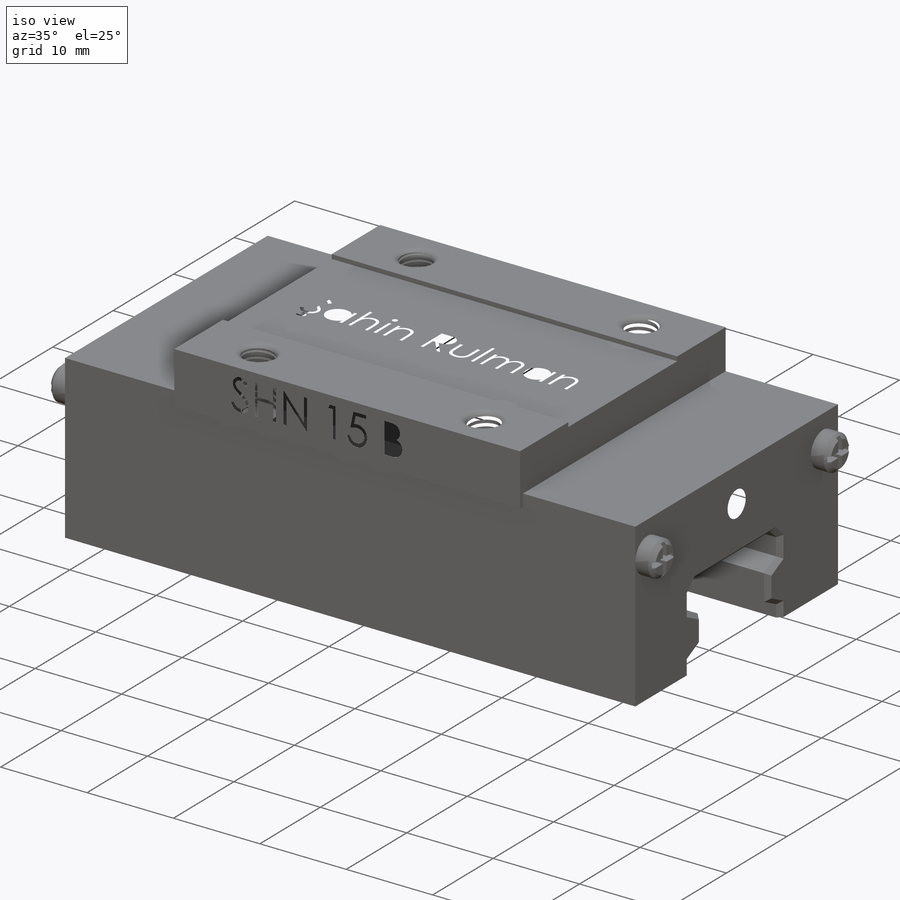
[diagram: iso view]
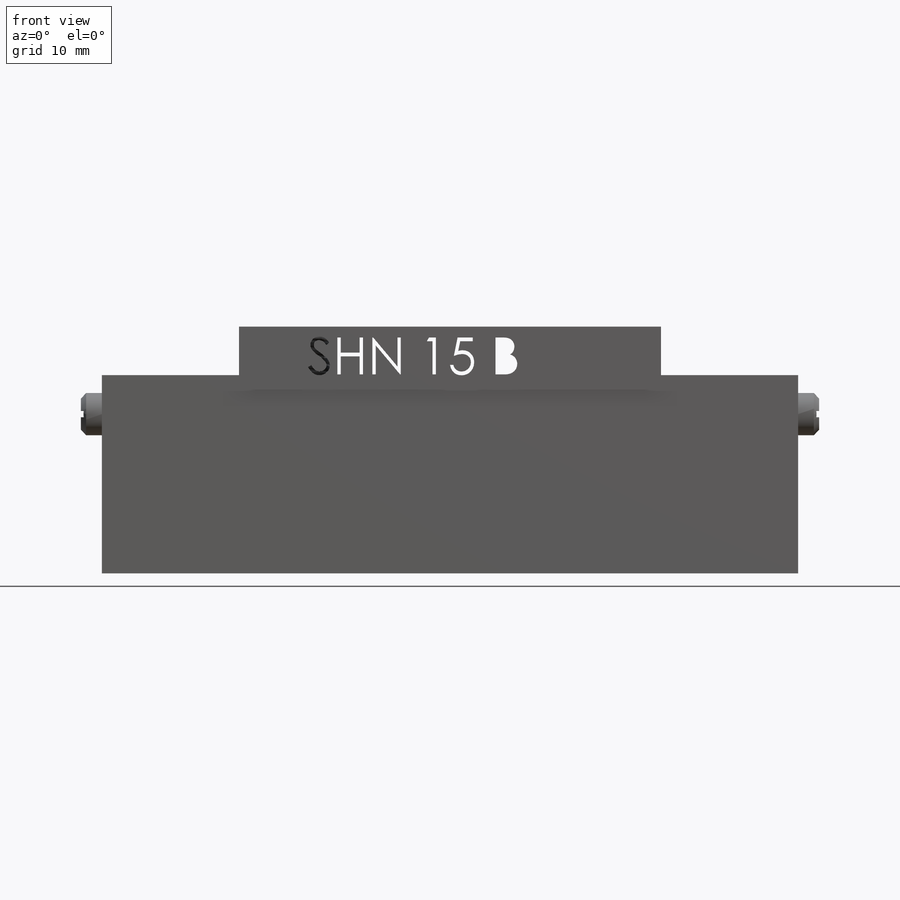
[diagram: front view]
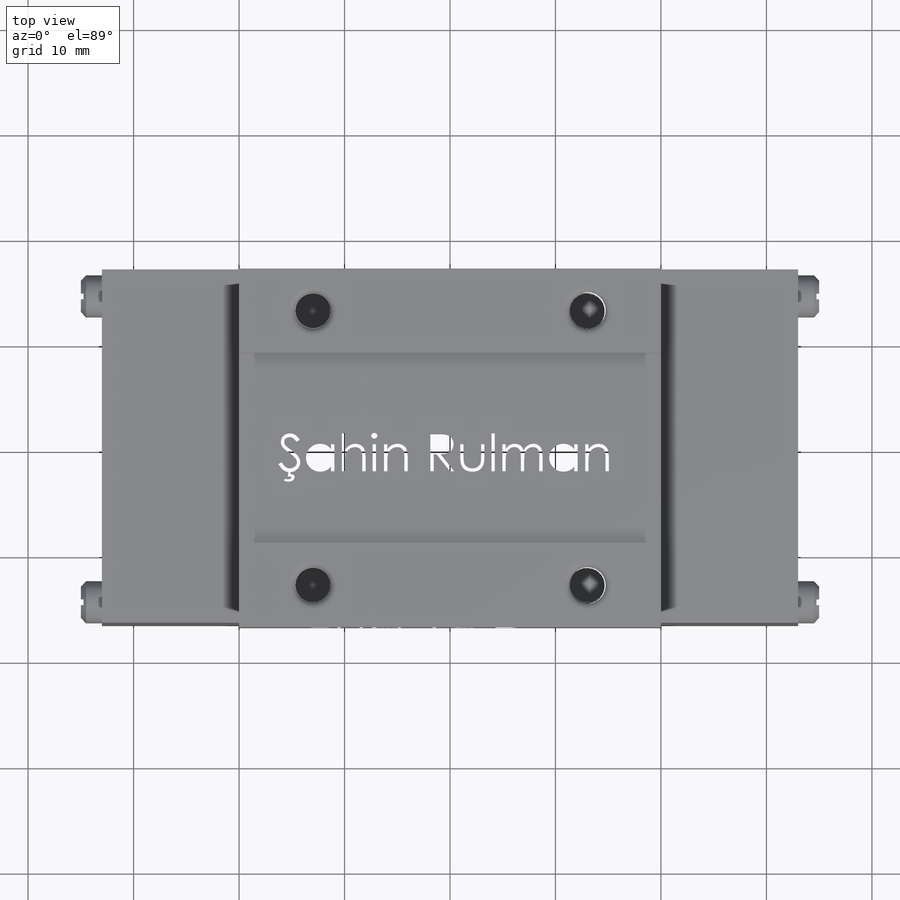
[diagram: top view]
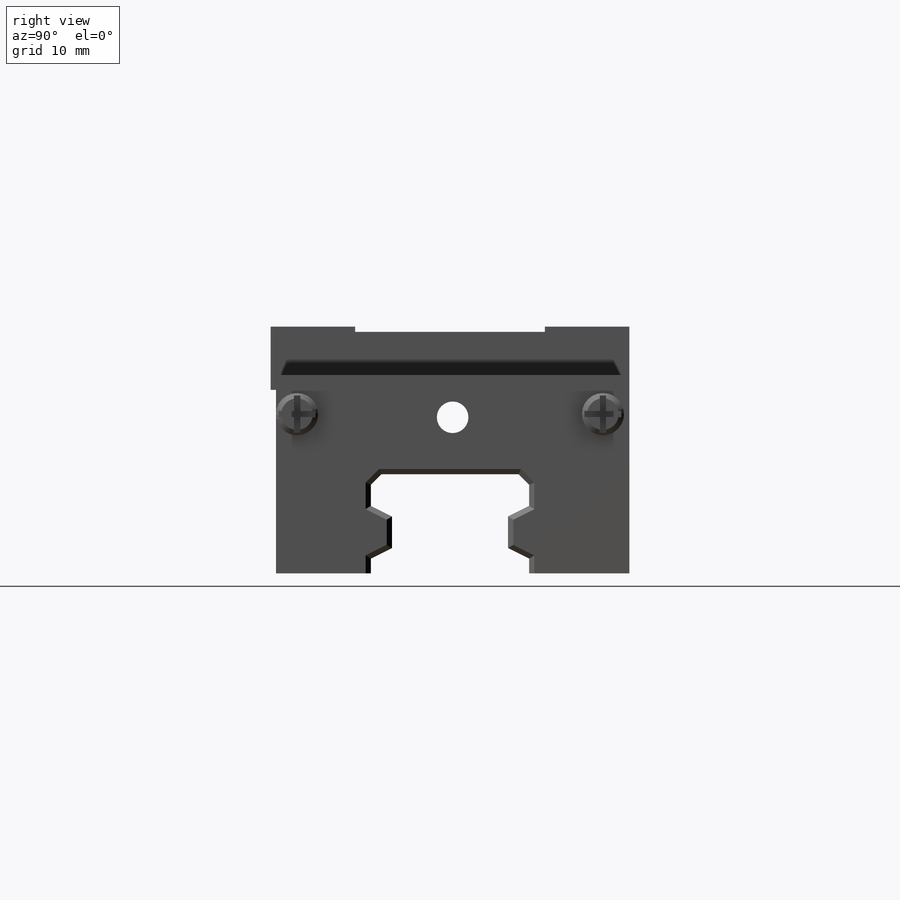
[diagram: right view]
SOLIDWORKS PART (.sldprt)
format: sldprt  version: not decoded by parser v0  size: 3,023,360 bytes
history: native  units: mm
features: sketch x11, mirror x7, cut_extrude x6, extrude x3, chamfer x2, material x1, fillet x1, helix x1, plane x1, sweep x1 (+11 scaffold rows collapsed)
feature tree (45):
  scaffold x11  (default folders/planes/origin — collapsed)
  material  "Material <not specified>"
  sketch  "Sketch1"  dims[D1=34.0mm D2=17.0mm D3=23.4mm D4=6.0mm D5=0.5mm]
  extrude  "Boss-Extrude1"  Depth=40mm
  sketch  "Sketch2"  dims[D1=4.6mm]
  extrude  "Boss-Extrude2"  Depth=13mm
  sketch  "Sketch3"  dims[D1=8.0mm D2=8.0mm D3=8.0mm D4=8.0mm]
  cut_extrude  "Cut-Extrude1"  [1 undecoded]
  mirror  "Mirror1"
  sketch  "Sketch9"  dims[D1=4.0mm D6=3.5mm D7=1.75mm D8=3.5mm D9=1.75mm D2=0.3mm D3=0.3mm D4=0.3mm D5=0.3mm]
  extrude  "Boss-Extrude6"  Depth=2mm
  chamfer  "Chamfer2"  Distance=0.5mm Angle=45deg
  mirror  "Mirror7"
  mirror  "Mirror8"
  mirror  "Mirror9"
  sketch  "Sketch10"  dims[D1=4.6mm D2=16.0mm D3=7.5mm D5=1.0mm D6=1.0mm D7=2.0mm D8=1.0mm D9=3.0mm D10=2.0mm D11=6.0mm D12=2.0mm D4=14.0mm]
  cut_extrude  "Cut-Extrude3"  [1 undecoded]
  chamfer  "Chamfer3"  Distance=0.5mm Angle=45deg
  sketch  "Sketch11"  dims[D3=3.3mm D1=13.0mm D2=13.0mm]
  cut_extrude  "Cut-Extrude4"  Depth=6.4mm
  fillet  "Fillet1"  Radius=0.7mm
  sketch  "Sketch12"
  helix  "Helix/Spiral1"  Pitch=6.4mm
  plane  "Plane1"
  sketch  "Sketch13"  dims[D1=0.35mm]
  sweep  "Cut-Sweep1"
  mirror  "Mirror10"
  mirror  "Mirror11"
  sketch  "Sketch14"
  cut_extrude  "Cut-Extrude5"  Depth=2mm
  sketch  "Sketch15"
  cut_extrude  "Cut-Extrude6"  Depth=2mm
  sketch  "Sketch16"  dims[D1=3.0mm D2=4.0mm]
  cut_extrude  "Cut-Extrude7"  [1 undecoded]
  mirror  "Mirror12"
decode coverage: 18 of 32 modeling features carry decoded parameters
note: 3 parameter values undecoded
summary: no parameter record found for 3 features
note: suppression state not decoded; provenance and decode notes live in map.json
